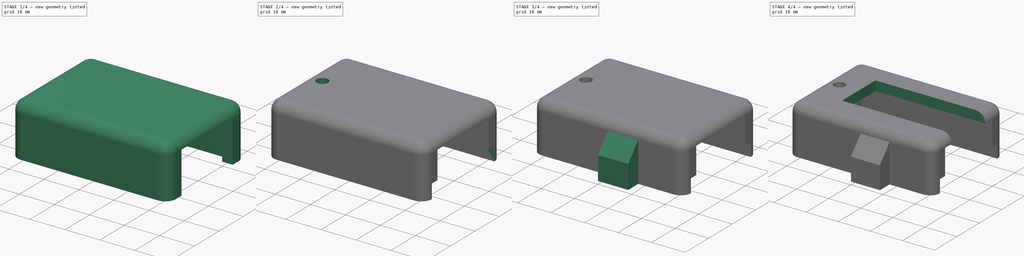
[diagram: build sequence overview — one tinted view per stage of 4, left to right]
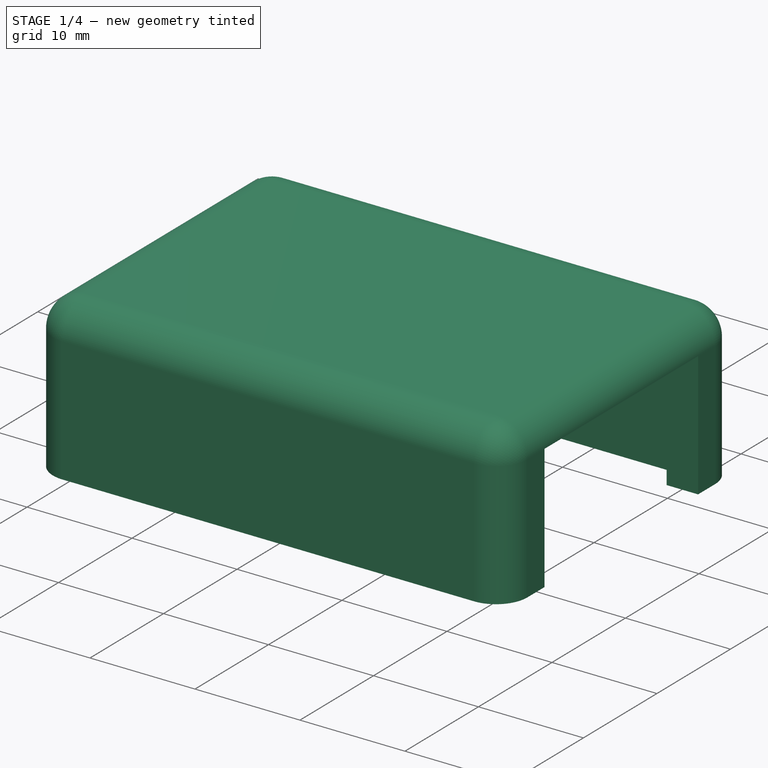
[diagram: stage 1 of 4 — iso view after this stage's code; geometry added in this stage tinted green]
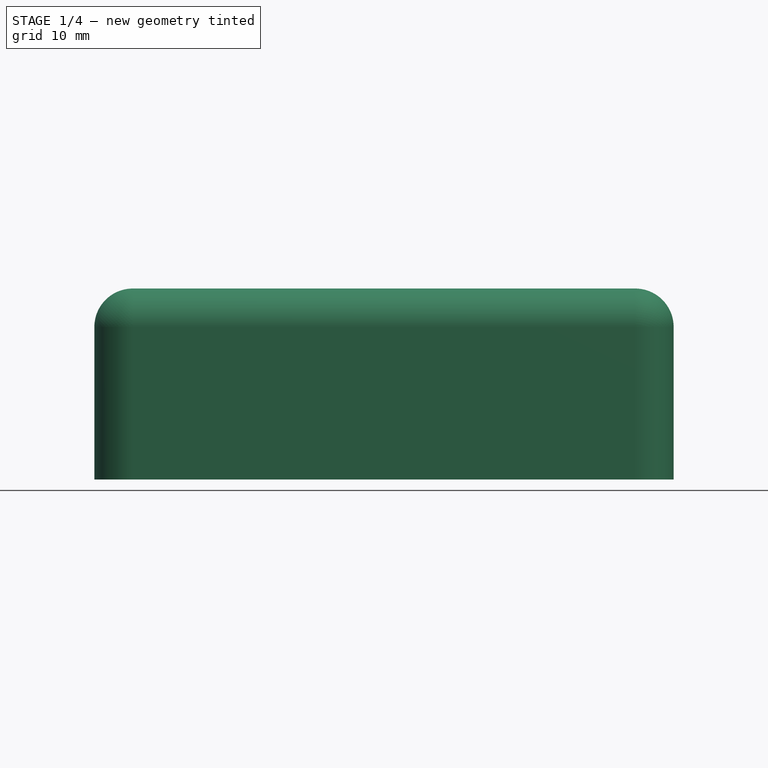
[diagram: stage 1 of 4 — front view after this stage's code; geometry added in this stage tinted green]
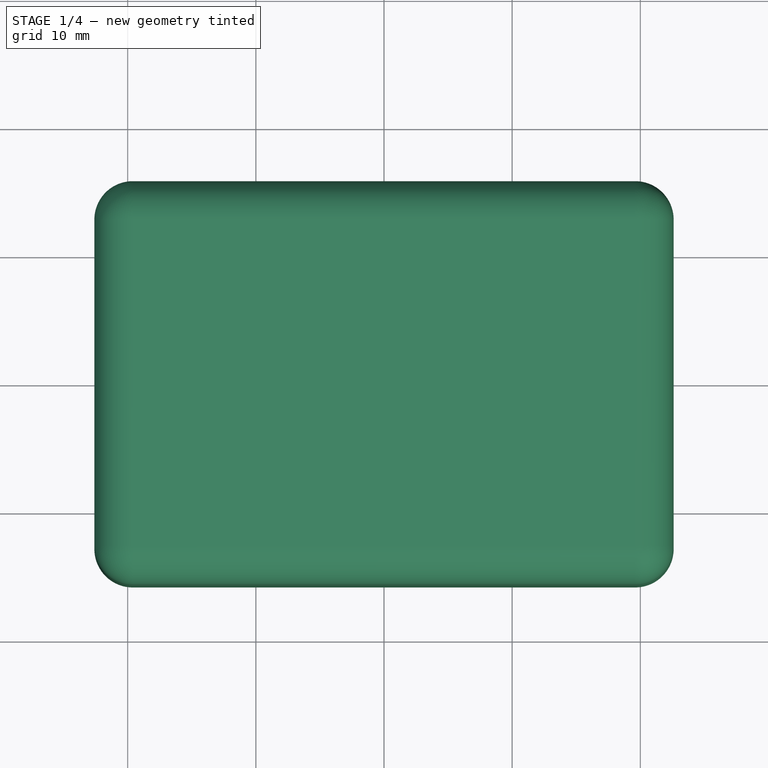
[diagram: stage 1 of 4 — top view after this stage's code; geometry added in this stage tinted green]
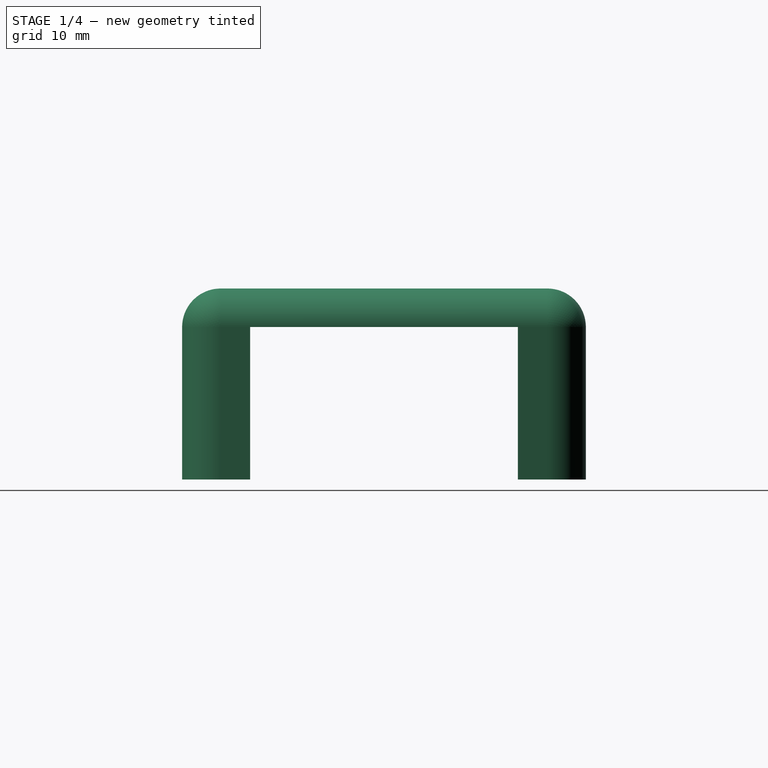
[diagram: stage 1 of 4 — right view after this stage's code; geometry added in this stage tinted green]
FCSTD DOCUMENT  (FreeCAD 0.18.1R)
Label: laser holder
License: All rights reserved
LicenseURL: http://en.wikipedia.org/wiki/All_rights_reserved
objects: Sketcher::SketchObject×8, PartDesign::Pocket×4, PartDesign::Pad×3, PartDesign::Mirrored×3, Spreadsheet::Sheet×1, PartDesign::Thickness×1, PartDesign::Hole×1, PartDesign::Body×1
note: 29 computed .brp shape members not serialized (recipe doc carries the construction recipe); baked Part::Feature solids carry a one-line shape summary decoded from their .brp

FEATURE [Spreadsheet::Sheet] Spreadsheet  label="Values"
  cells = A1=Laser length; B1(length)=39.2; A2=Laser height; B2(height)=11.9; A3=Laser width; B3(width)=25.5
FEATURE [Sketcher::SketchObject] Sketch
  MapMode = 5
  Support = -> [XY_Plane]
  expr: Constraints[10] = Spreadsheet.width
  expr: Constraints[9] = Values.length
  sketch-geometry (4):
    g0: LineSegment StartX=-19.6 StartY=12.75 StartZ=0 EndX=19.6 EndY=12.75 EndZ=0
    g1: LineSegment StartX=19.6 StartY=12.75 StartZ=0 EndX=19.6 EndY=-12.75 EndZ=0
    g2: LineSegment StartX=19.6 StartY=-12.75 StartZ=0 EndX=-19.6 EndY=-12.75 EndZ=0
    g3: LineSegment StartX=-19.6 StartY=-12.75 StartZ=0 EndX=-19.6 EndY=12.75 EndZ=0
  constraints (11):
    c: Coincident(g0,g1)
    c: Coincident(g1,g2)
    c: Coincident(g2,g3)
    c: Coincident(g3,g0)
    c: Horizontal(g0)
    c: Horizontal(g2)
    c: Vertical(g1)
    c: Vertical(g3)
    c: Symmetric(g0,g2,g-1)
    c: DistanceX(g2,g2) = 39.2
    c: DistanceY(g3,g3) = 25.5
FEATURE [PartDesign::Pad] Pad
  Length = 11.9
  Length2 = 100
  Profile = -> Sketch
  Refine = true
  Type = 0
  expr: Length = Values.height
FEATURE [PartDesign::Thickness] Thickness
  Base = -> Pad [Face5]
  BaseFeature = -> Pad
  Join = 0
  Mode = 0
  Value = 3
FEATURE [Sketcher::SketchObject] Sketch001
  ExternalGeometry = -> [Thickness]
  MapMode = 5
  Placement = pos=(0,0,0) rot=(1,0,0;3.14159rad)
  Support = -> [Thickness]
  sketch-geometry (4):
    g0: LineSegment StartX=-22.6 StartY=10.45 StartZ=0 EndX=22.6 EndY=10.45 EndZ=0
    g1: LineSegment StartX=22.6 StartY=10.45 StartZ=0 EndX=22.6 EndY=-10.45 EndZ=0
    g2: LineSegment StartX=22.6 StartY=-10.45 StartZ=0 EndX=-22.6 EndY=-10.45 EndZ=0
    g3: LineSegment StartX=-22.6 StartY=-10.45 StartZ=0 EndX=-22.6 EndY=10.45 EndZ=0
  constraints (11):
    c: Coincident(g0,g1)
    c: Coincident(g1,g2)
    c: Coincident(g2,g3)
    c: Coincident(g3,g0)
    c: Horizontal(g0)
    c: Horizontal(g2)
    c: Vertical(g1)
    c: Vertical(g3)
    c: PointOnObject(g0,g-3)
    c: Symmetric(g0,g2,g-1)
    c: DistanceY(g0,g-3) = 2.3
FEATURE [PartDesign::Pocket] Pocket
  BaseFeature = -> Thickness
  Length = 11.9
  Length2 = 100
  Profile = -> Sketch001
  Refine = true
  Type = 0
  expr: Length = Values.height
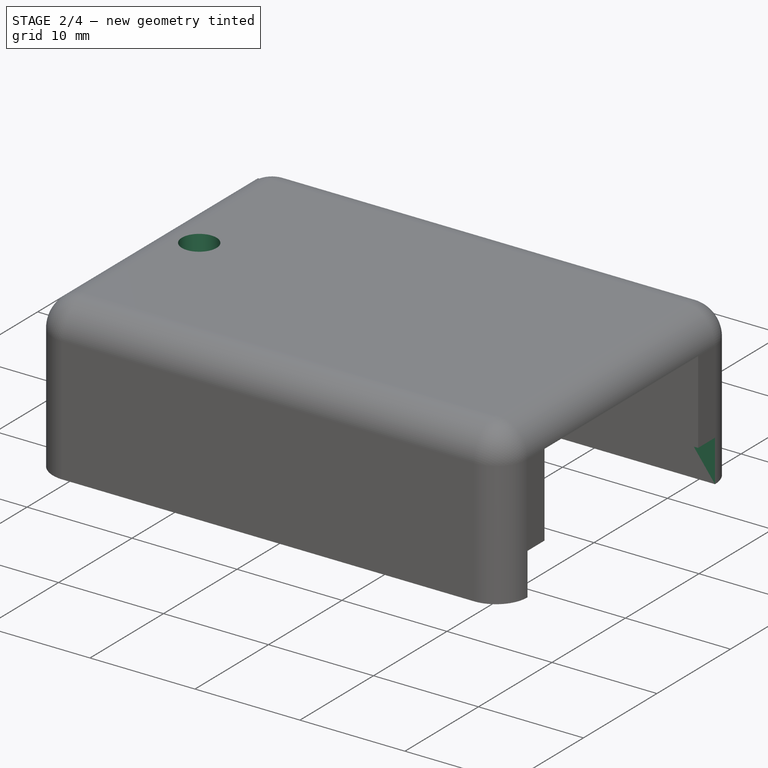
[diagram: stage 2 of 4 — iso view after this stage's code; geometry added in this stage tinted green]
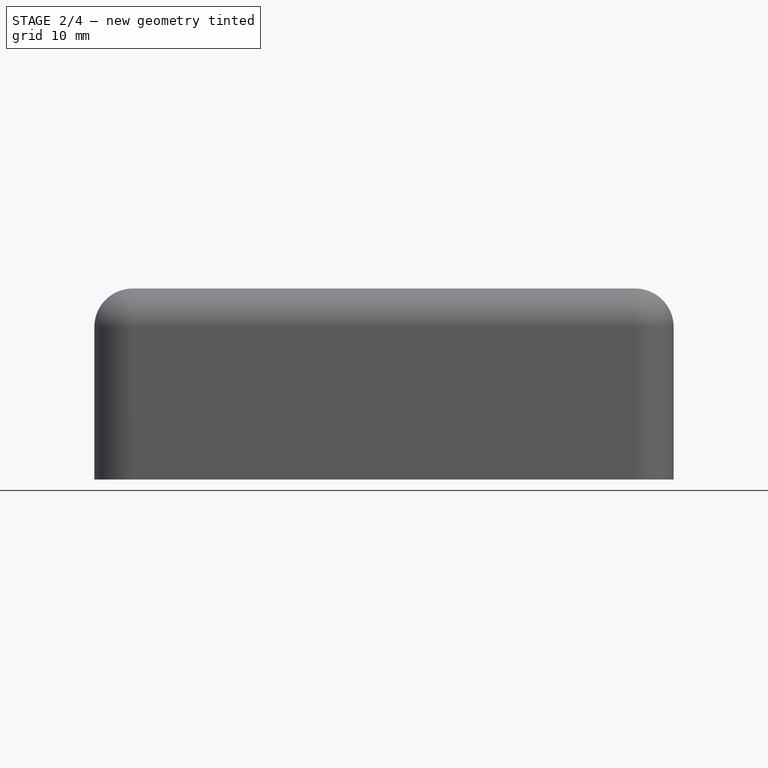
[diagram: stage 2 of 4 — front view after this stage's code; geometry added in this stage tinted green]
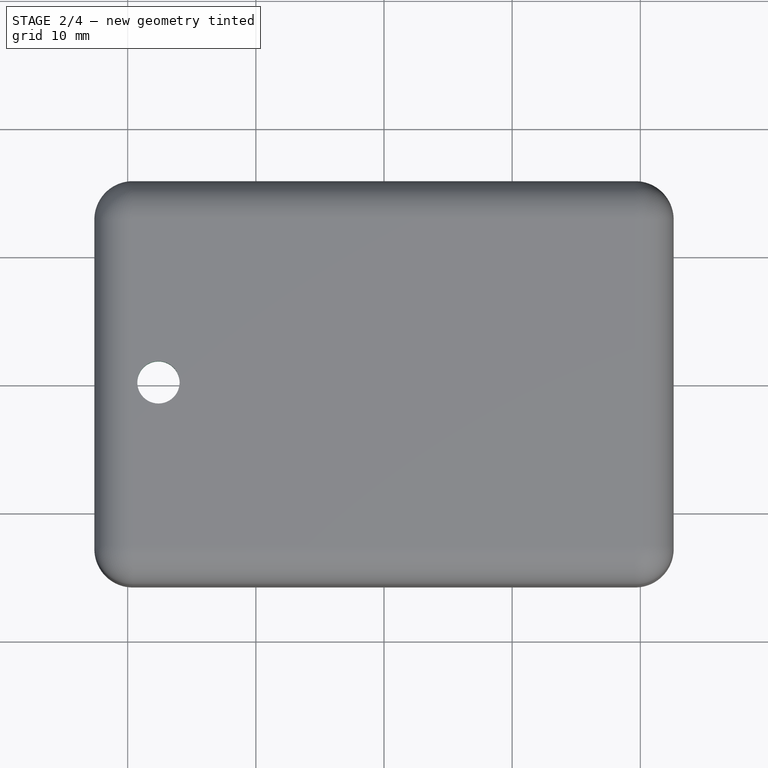
[diagram: stage 2 of 4 — top view after this stage's code; geometry added in this stage tinted green]
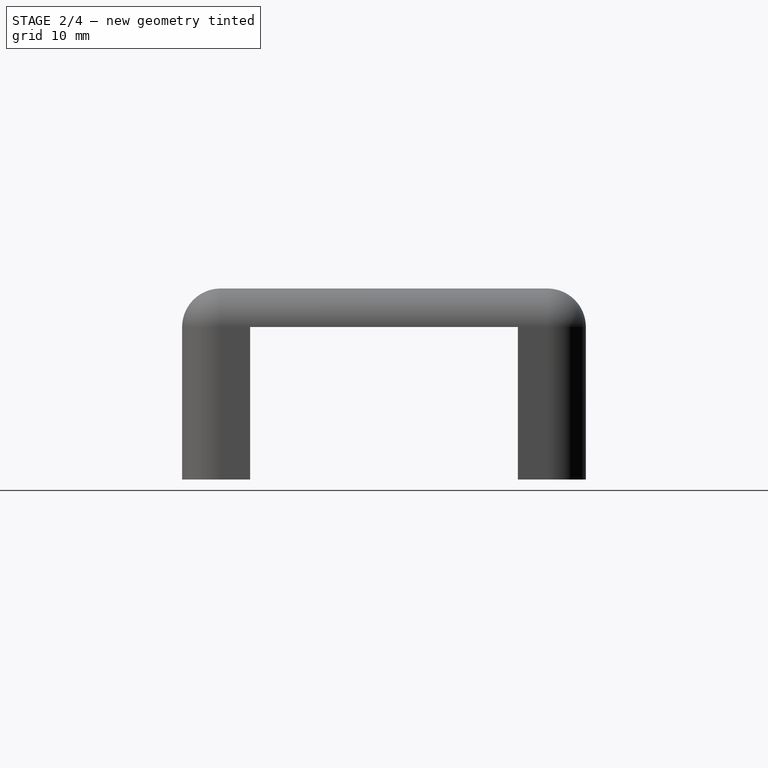
[diagram: stage 2 of 4 — right view after this stage's code; geometry added in this stage tinted green]
FEATURE [Sketcher::SketchObject] Sketch002
  ExternalGeometry = -> [Pocket]
  MapMode = 5
  Placement = pos=(0,0,0) rot=(1,0,0;3.14159rad)
  Support = -> [Pocket]
  sketch-geometry (4):
    g0: LineSegment StartX=19.6 StartY=12.75 StartZ=0 EndX=22.6 EndY=12.75 EndZ=0
    g1: LineSegment StartX=22.6 StartY=12.75 StartZ=0 EndX=22.6 EndY=10.45 EndZ=0
    g2: LineSegment StartX=22.6 StartY=10.45 StartZ=0 EndX=19.6 EndY=10.45 EndZ=0
    g3: LineSegment StartX=19.6 StartY=10.45 StartZ=0 EndX=19.6 EndY=12.75 EndZ=0
  constraints (10):
    c: Coincident(g0,g1)
    c: Coincident(g1,g2)
    c: Coincident(g2,g3)
    c: Coincident(g3,g0)
    c: Horizontal(g0)
    c: Horizontal(g2)
    c: Vertical(g1)
    c: Vertical(g3)
    c: Coincident(g0,g-3)
    c: Coincident(g1,g-4)
FEATURE [PartDesign::Pocket] Pocket001
  BaseFeature = -> Pocket
  Length = 4
  Length2 = 100
  Profile = -> Sketch002
  Refine = true
  Type = 0
FEATURE [PartDesign::Mirrored] Mirrored
  BaseFeature = -> Pocket001
  MirrorPlane = -> Sketch002 [H_Axis]
  Originals = -> [Pocket001]
  Refine = true
FEATURE [Sketcher::SketchObject] Sketch003
  ExternalGeometry = -> [Mirrored]
  MapMode = 5
  Placement = pos=(0,0,11.9) rot=(1,0,0;3.14159rad)
  Support = -> [Mirrored]
  sketch-geometry (1):
    g0: Circle CenterX=-17.6 CenterY=0 CenterZ=0 NormalX=0 NormalY=0 NormalZ=1 AngleXU=0 Radius=1.65
  constraints (3):
    c: PointOnObject(g0,g-1)
    c: DistanceX(g-3,g0) = 5
    c: Diameter(g0) = 3.3
FEATURE [PartDesign::Hole] Hole
  BaseFeature = -> Mirrored
  Depth = 25
  DepthType = 0
  Diameter = 3.3
  DrillPoint = 1
  DrillPointAngle = 118
  HoleCutCountersinkAngle = 90
  HoleCutDepth = 0
  HoleCutDiameter = 6
  HoleCutType = 2
  ModelActualThread = false
  Profile = -> Sketch003
  Refine = true
  Tapered = false
  TaperedAngle = 90
  ThreadAngle = 0
  ThreadClass = 0
  ThreadCutOffInner = 0
  ThreadCutOffOuter = 0
  ThreadDirection = 0
  ThreadFit = 0
  ThreadPitch = 0
  ThreadSize = 9
  ThreadType = 2
  Threaded = false
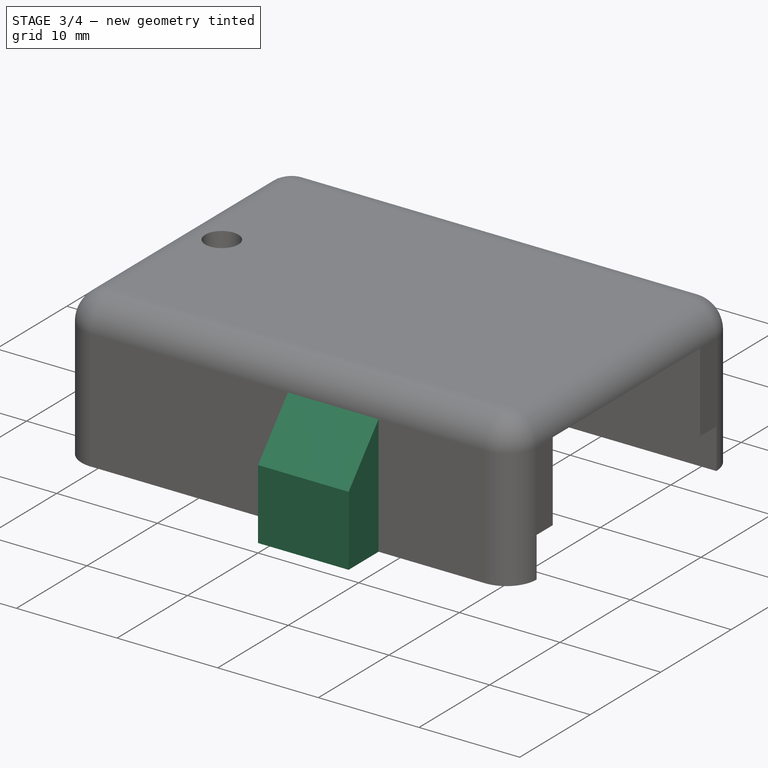
[diagram: stage 3 of 4 — iso view after this stage's code; geometry added in this stage tinted green]
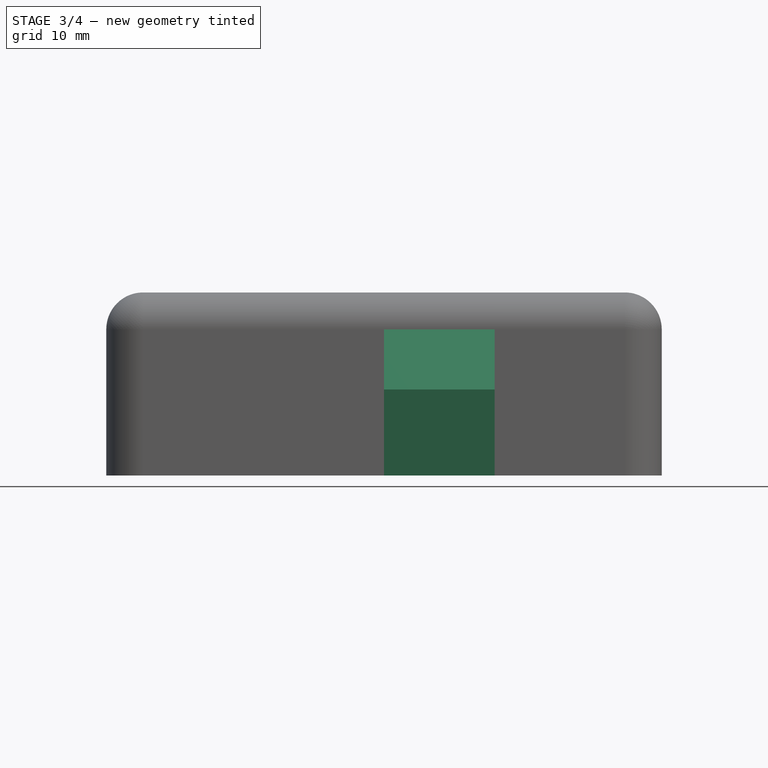
[diagram: stage 3 of 4 — front view after this stage's code; geometry added in this stage tinted green]
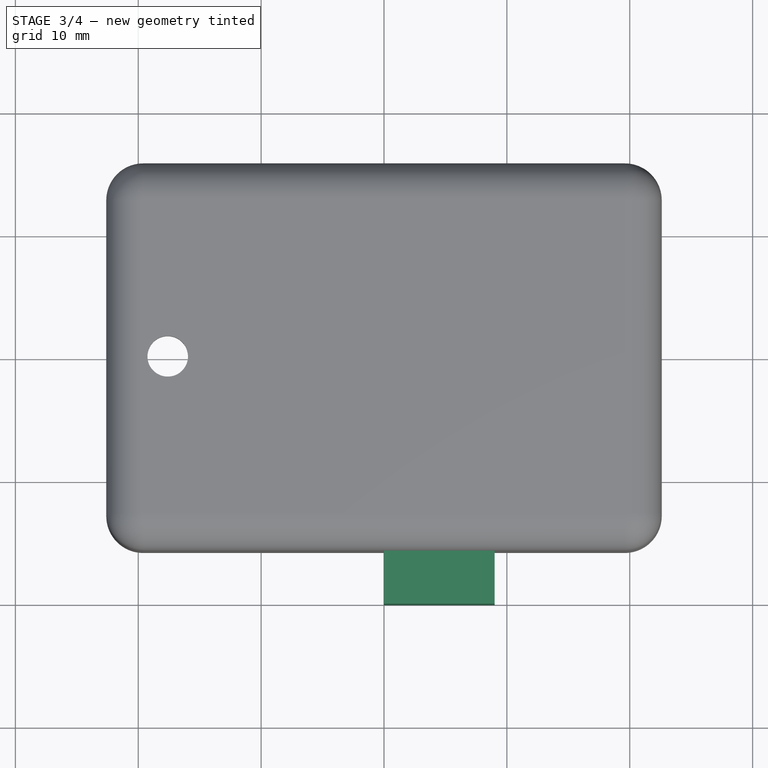
[diagram: stage 3 of 4 — top view after this stage's code; geometry added in this stage tinted green]
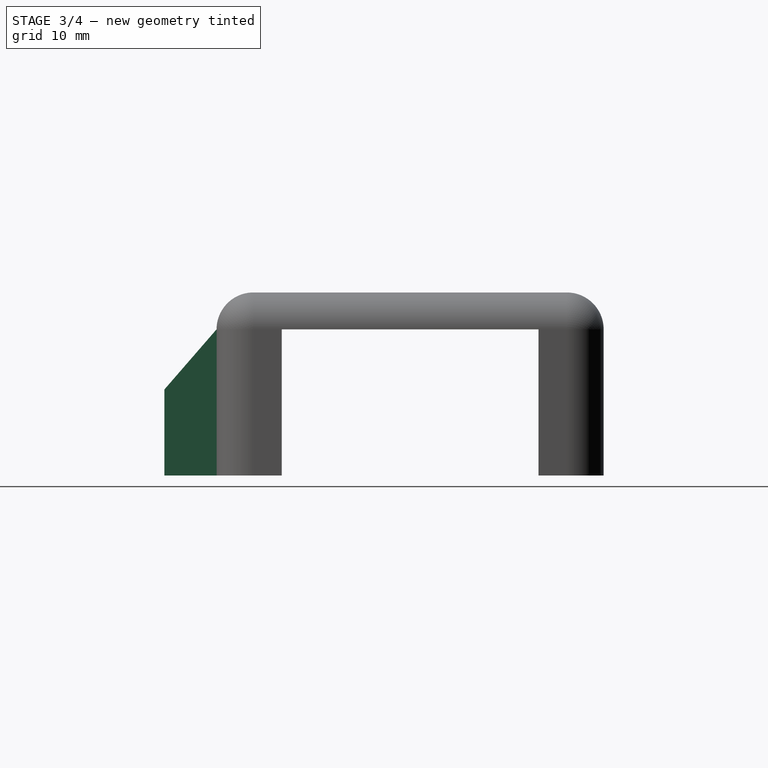
[diagram: stage 3 of 4 — right view after this stage's code; geometry added in this stage tinted green]
FEATURE [Sketcher::SketchObject] Sketch004
  ExternalGeometry = -> [Hole]
  MapMode = 5
  Placement = pos=(0,0,0) rot=(1,0,0;3.14159rad)
  Support = -> [Hole]
  sketch-geometry (4):
    g0: LineSegment StartX=0 StartY=20 StartZ=0 EndX=9 EndY=20 EndZ=0
    g1: LineSegment StartX=9 StartY=20 StartZ=0 EndX=9 EndY=12.75 EndZ=0
    g2: LineSegment StartX=9 StartY=12.75 StartZ=0 EndX=0 EndY=12.75 EndZ=0
    g3: LineSegment StartX=0 StartY=12.75 StartZ=0 EndX=0 EndY=20 EndZ=0
  constraints (12):
    c: Coincident(g0,g1)
    c: Coincident(g1,g2)
    c: Coincident(g2,g3)
    c: Coincident(g3,g0)
    c: Horizontal(g0)
    c: Horizontal(g2)
    c: Vertical(g1)
    c: Vertical(g3)
    c: PointOnObject(g1,g-5)
    c: DistanceX(g0,g0) = 9
    c: DistanceY(g-1,g0) = 20
    c: PointOnObject(g0,g-2)
FEATURE [PartDesign::Pad] Pad001
  BaseFeature = -> Hole
  Length = 7
  Length2 = 100
  Profile = -> Sketch004
  Refine = true
  Reversed = true
  Type = 0
FEATURE [Sketcher::SketchObject] Sketch005
  ExternalGeometry = -> [Pad001]
  MapMode = 5
  Placement = pos=(0,0,0) rot=(1,0,0;3.14159rad)
  Support = -> [Pad001]
  sketch-geometry (1):
    g0: Circle CenterX=4.4 CenterY=16 CenterZ=0 NormalX=0 NormalY=0 NormalZ=1 AngleXU=0 Radius=1.9
  constraints (3):
    c: DistanceY(g0) = 16
    c: Diameter(g0) = 3.8
    c: DistanceX(g-3,g0) = 22
FEATURE [PartDesign::Pocket] Pocket002
  BaseFeature = -> Pad001
  Length = 5.5
  Length2 = 100
  Profile = -> Sketch005
  Refine = true
  Type = 0
FEATURE [Sketcher::SketchObject] Sketch006
  ExternalGeometry = -> [Pad001]
  MapMode = 5
  Placement = pos=(9,0,0) rot=(0.57735,0.57735,0.57735;2.0944rad)
  Support = -> [Pocket002]
  sketch-geometry (4):
    g0: LineSegment StartX=-20 StartY=7 StartZ=0 EndX=-15.75 EndY=7 EndZ=0
    g1: LineSegment StartX=-15.75 StartY=11.9 StartZ=0 EndX=-20 EndY=7 EndZ=0
    g2: LineSegment StartX=-20 StartY=7 StartZ=0 EndX=-15.75 EndY=7 EndZ=0
    g3: LineSegment StartX=-15.75 StartY=7 StartZ=0 EndX=-15.75 EndY=11.9 EndZ=0
  constraints (8):
    c: Coincident(g0,g-4)
    c: Coincident(g-5,g1)
    c: Coincident(g1,g0)
    c: Coincident(g1,g2)
    c: Coincident(g2,g0)
    c: Coincident(g2,g3)
    c: Coincident(g3,g1)
    c: Coincident(g0,g-4)
FEATURE [PartDesign::Pad] Pad002
  BaseFeature = -> Pocket002
  Length = 9
  Length2 = 100
  Profile = -> Sketch006
  Refine = true
  Reversed = true
  Type = 0
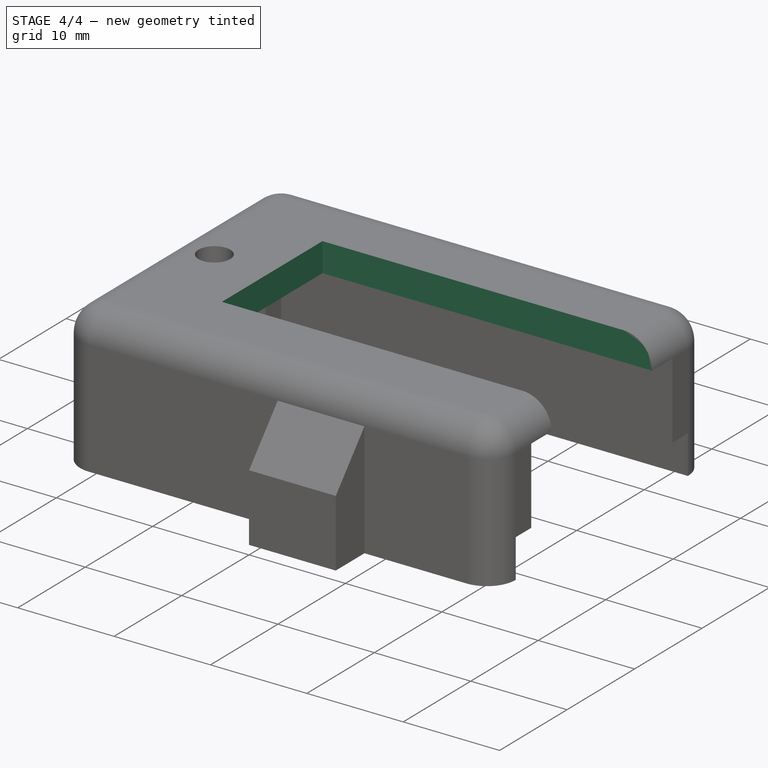
[diagram: stage 4 of 4 — iso view after this stage's code; geometry added in this stage tinted green]
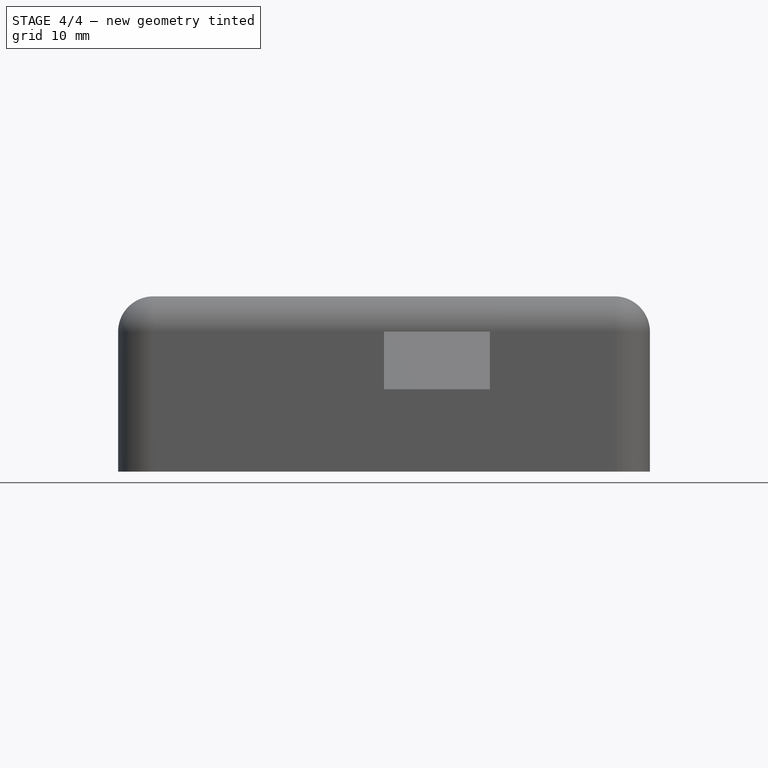
[diagram: stage 4 of 4 — front view after this stage's code; geometry added in this stage tinted green]
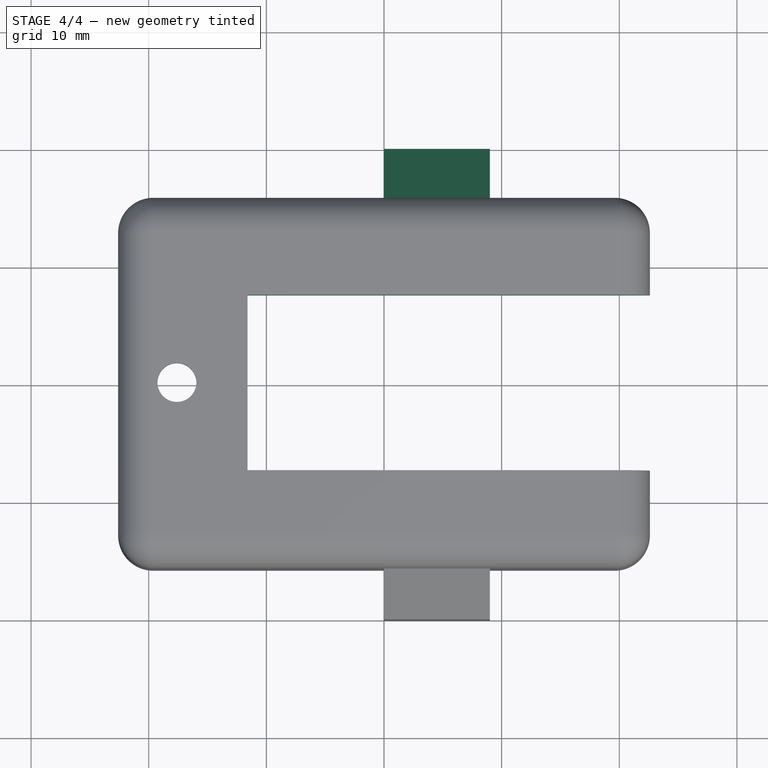
[diagram: stage 4 of 4 — top view after this stage's code; geometry added in this stage tinted green]
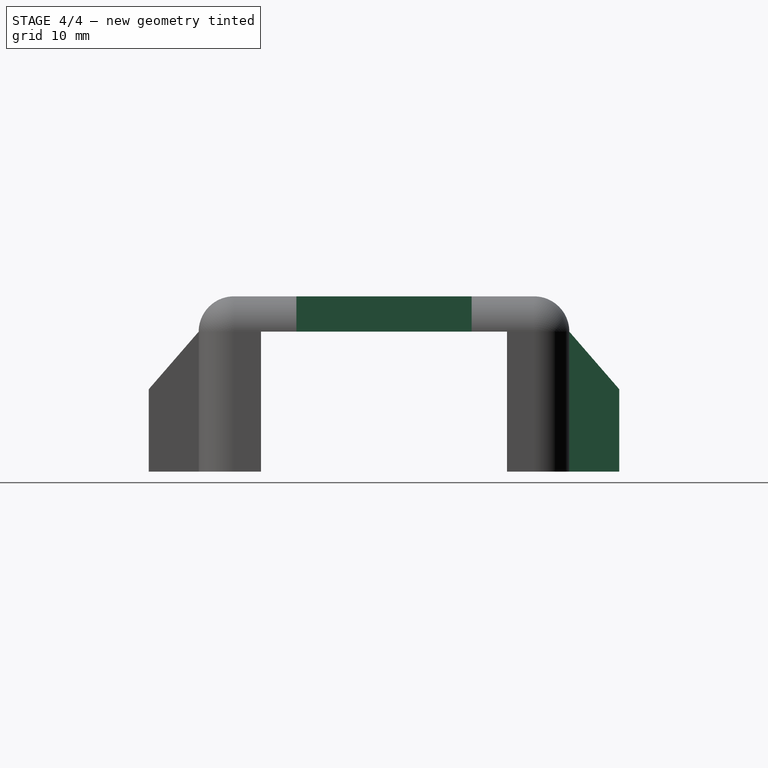
[diagram: stage 4 of 4 — right view after this stage's code; geometry added in this stage tinted green]
FEATURE [PartDesign::Mirrored] Mirrored001
  BaseFeature = -> Pad002
  MirrorPlane = -> Sketch004 [H_Axis]
  Originals = -> [Pad001,Pad002]
  Refine = true
FEATURE [PartDesign::Mirrored] Mirrored002
  BaseFeature = -> Mirrored001
  MirrorPlane = -> Sketch005 [H_Axis]
  Originals = -> [Pocket002]
  Refine = true
FEATURE [Sketcher::SketchObject] Sketch007
  ExternalGeometry = -> [Mirrored002]
  MapMode = 5
  Placement = pos=(0,0,11.9) rot=(1,0,0;3.14159rad)
  Support = -> [Mirrored002]
  sketch-geometry (4):
    g0: LineSegment StartX=-11.6 StartY=7.45 StartZ=0 EndX=22.6 EndY=7.45 EndZ=0
    g1: LineSegment StartX=22.6 StartY=7.45 StartZ=0 EndX=22.6 EndY=-7.45 EndZ=0
    g2: LineSegment StartX=22.6 StartY=-7.45 StartZ=0 EndX=-11.6 EndY=-7.45 EndZ=0
    g3: LineSegment StartX=-11.6 StartY=-7.45 StartZ=0 EndX=-11.6 EndY=7.45 EndZ=0
  constraints (11):
    c: Coincident(g0,g1)
    c: Coincident(g1,g2)
    c: Coincident(g2,g3)
    c: Coincident(g3,g0)
    c: Horizontal(g0)
    c: Horizontal(g2)
    c: Vertical(g3)
    c: PointOnObject(g0,g-4)
    c: Symmetric(g0,g1,g-1)
    c: DistanceY(g0,g-4) = 3
    c: DistanceX(g-3,g0) = 6
FEATURE [PartDesign::Pocket] Pocket003
  BaseFeature = -> Mirrored002
  Length = 5
  Length2 = 100
  Profile = -> Sketch007
  Refine = true
  Type = 1
FEATURE [PartDesign::Body] Body
  Group = -> [Sketch,Pad,Thickness,Sketch001,Pocket,Sketch002,Pocket001,Mirrored,Sketch003,Hole,Sketch004,Pad001,Sketch005,Pocket002,Sketch006,Pad002,Mirrored001,Mirrored002,Sketch007,Pocket003]
  Origin = -> Origin
  Tip = -> Pocket003
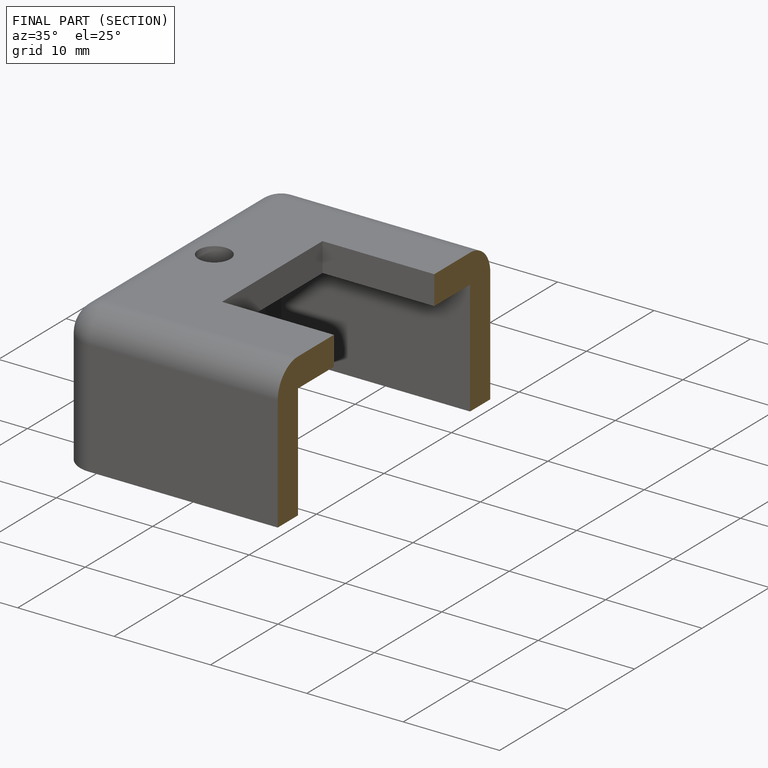
[diagram: finished part — half-section view (interior)]
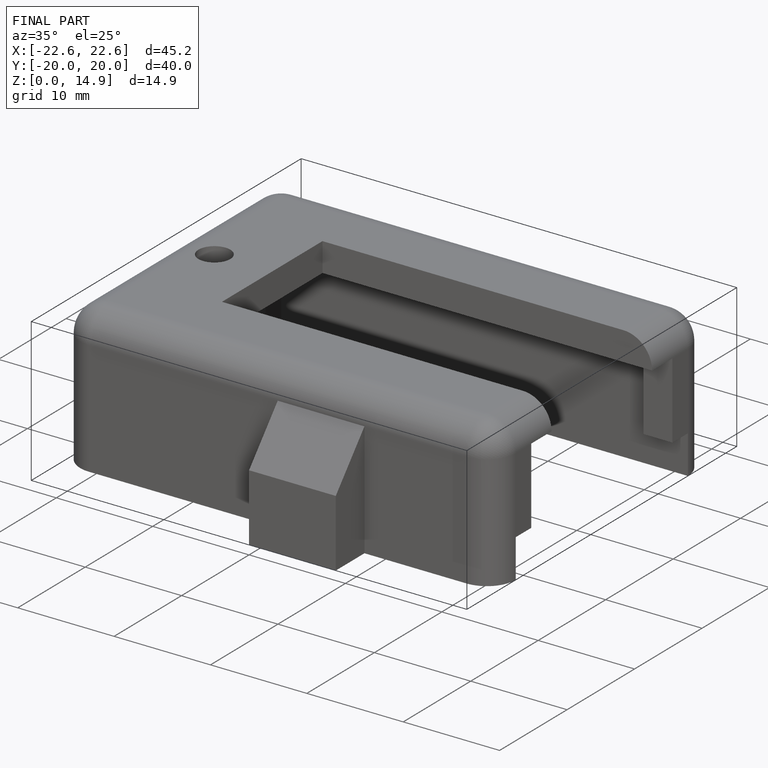
[diagram: finished part — iso view with bounding-box wireframe]
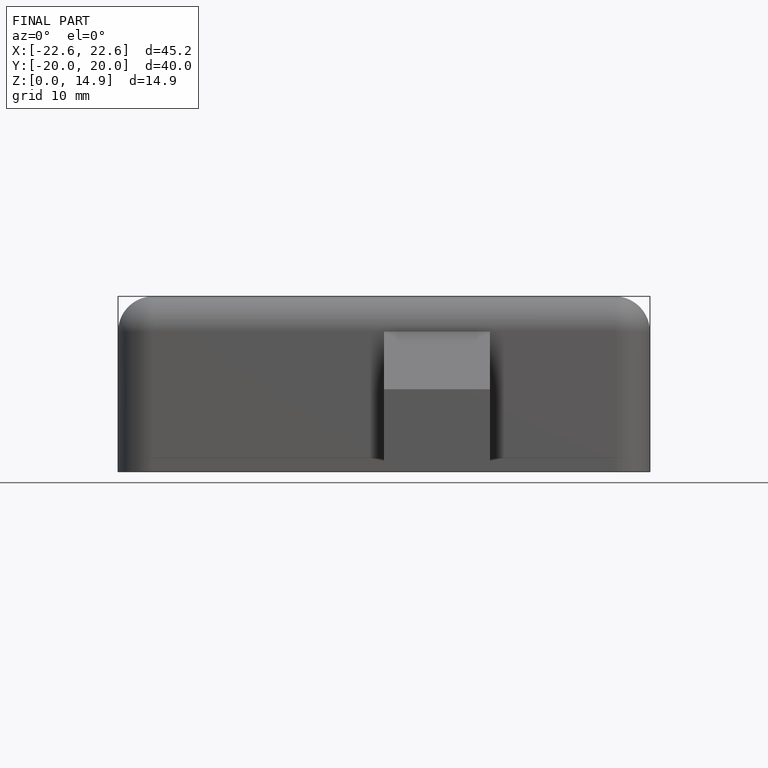
[diagram: finished part — front view with bounding-box wireframe]
